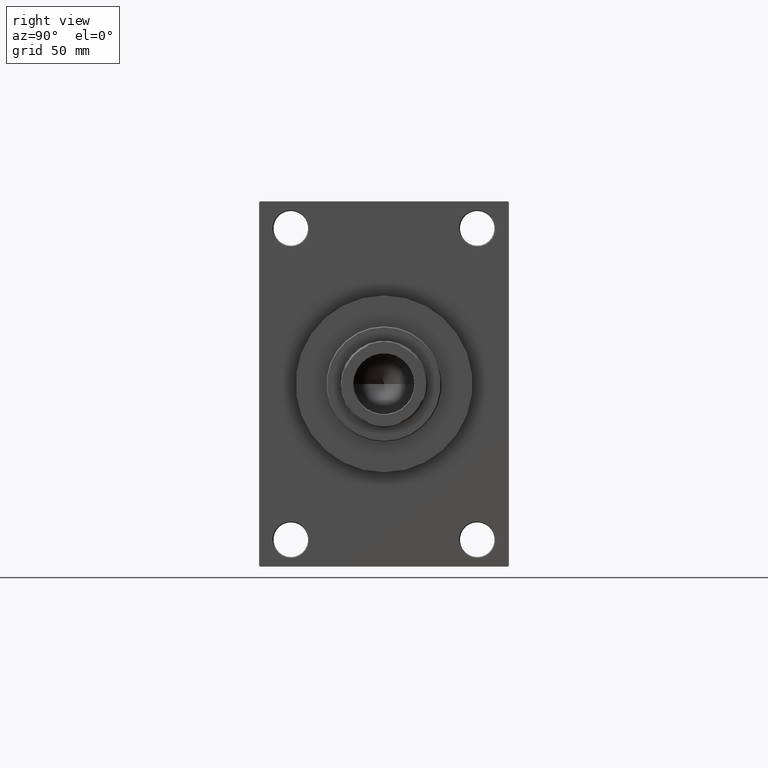
[diagram: clean part render]
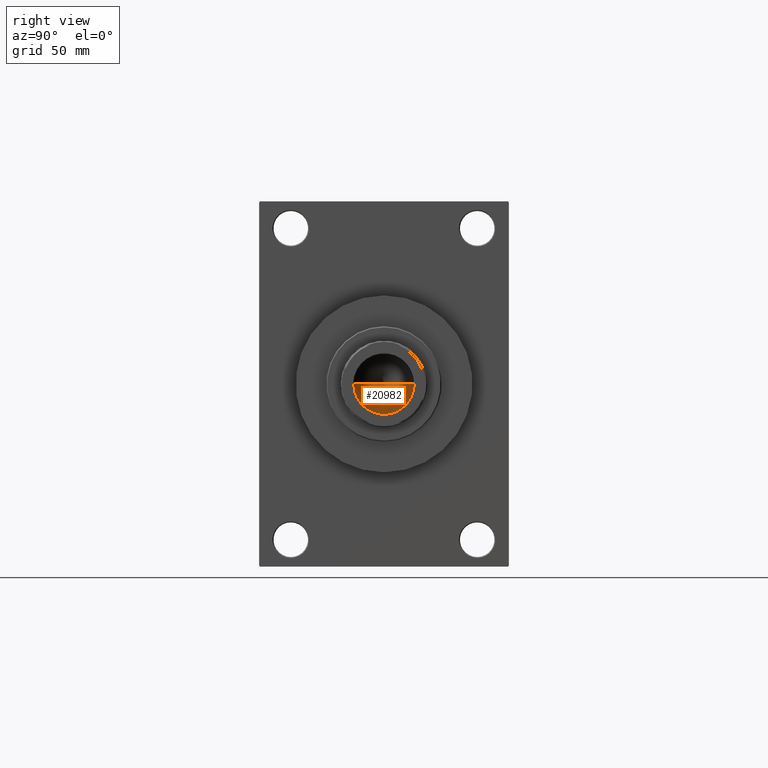
[diagram: same view with one face highlighted and labeled with its STEP entity id]
A machine part, right view. The second image highlights one B-rep face of the part: STEP entity #20982.
In plain terms, the highlighted conical surface has half-angle 59 deg.
Its self-contained STEP definition (entity closure, byte-faithful):
#37 = CARTESIAN_POINT ( 'NONE',  ( -15.74999999999998934, 1.928818708657080161E-15, 183.0000000000000000 ) ) ;
#502 = LINE ( 'NONE', #33041, #18580 ) ;
#896 = EDGE_CURVE ( 'NONE', #4431, #33433, #502, .T. ) ;
#1407 = VECTOR ( 'NONE', #32157, 1000.000000000000000 ) ;
#3091 = CIRCLE ( 'NONE', #6986, 15.74999999999998934 ) ;
#3547 = CARTESIAN_POINT ( 'NONE',  ( 15.74999999999998934, 0.000000000000000000, 183.0000000000000000 ) ) ;
#4431 = VERTEX_POINT ( 'NONE', #45202 ) ;
#4636 = EDGE_CURVE ( 'NONE', #4431, #5112, #38684, .T. ) ;
#5112 = VERTEX_POINT ( 'NONE', #37 ) ;
#6986 = AXIS2_PLACEMENT_3D ( 'NONE', #14799, #18425, #43713 ) ;
#9339 = EDGE_CURVE ( 'NONE', #33433, #5112, #3091, .T. ) ;
#10861 = DIRECTION ( 'NONE',  ( 1.000000000000000000, 0.000000000000000000, 0.000000000000000000 ) ) ;
#14799 = CARTESIAN_POINT ( 'NONE',  ( 0.000000000000000000, 0.000000000000000000, 183.0000000000000000 ) ) ;
#14950 = CARTESIAN_POINT ( 'NONE',  ( 0.000000000000000000, 0.000000000000000000, 183.0000000000000000 ) ) ;
#18425 = DIRECTION ( 'NONE',  ( -0.000000000000000000, -0.000000000000000000, 1.000000000000000000 ) ) ;
#18580 = VECTOR ( 'NONE', #20266, 1000.000000000000000 ) ;
#20266 = DIRECTION ( 'NONE',  ( 0.8571673007021112234, 0.000000000000000000, 0.5150380749100560429 ) ) ;
#20982 = ADVANCED_FACE ( 'NONE', ( #22671 ), #37964, .F. ) ;
#22671 = FACE_OUTER_BOUND ( 'NONE', #33869, .T. ) ;
#26268 = DIRECTION ( 'NONE',  ( -0.000000000000000000, -0.000000000000000000, 1.000000000000000000 ) ) ;
#27196 = AXIS2_PLACEMENT_3D ( 'NONE', #14950, #26268, #10861 ) ;
#31487 = ORIENTED_EDGE ( 'NONE', *, *, #9339, .T. ) ;
#32157 = DIRECTION ( 'NONE',  ( -0.8571673007021112234, 1.049727191138617340E-16, 0.5150380749100560429 ) ) ;
#33041 = CARTESIAN_POINT ( 'NONE',  ( 15.74999999999998934, 0.000000000000000000, 183.0000000000000000 ) ) ;
#33433 = VERTEX_POINT ( 'NONE', #3547 ) ;
#33869 = EDGE_LOOP ( 'NONE', ( #40782, #38884, #31487 ) ) ;
#37964 = CONICAL_SURFACE ( 'NONE', #27196, 15.74999999999998934, 1.029744258676652313 ) ;
#38684 = LINE ( 'NONE', #42767, #1407 ) ;
#38884 = ORIENTED_EDGE ( 'NONE', *, *, #896, .T. ) ;
#40782 = ORIENTED_EDGE ( 'NONE', *, *, #4636, .F. ) ;
#42767 = CARTESIAN_POINT ( 'NONE',  ( -15.74999999999998934, 1.928818708657080161E-15, 183.0000000000000000 ) ) ;
#43713 = DIRECTION ( 'NONE',  ( 1.000000000000000000, 0.000000000000000000, 0.000000000000000000 ) ) ;
#45202 = CARTESIAN_POINT ( 'NONE',  ( -1.584115414415908206E-14, 0.000000000000000000, 173.5364452503158930 ) ) ;